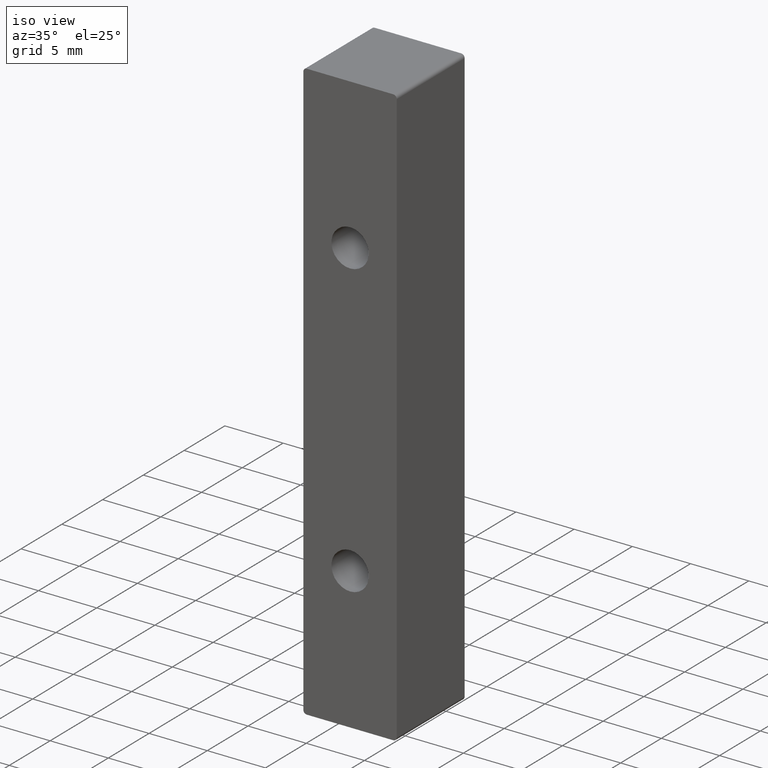
[diagram: clean part render]
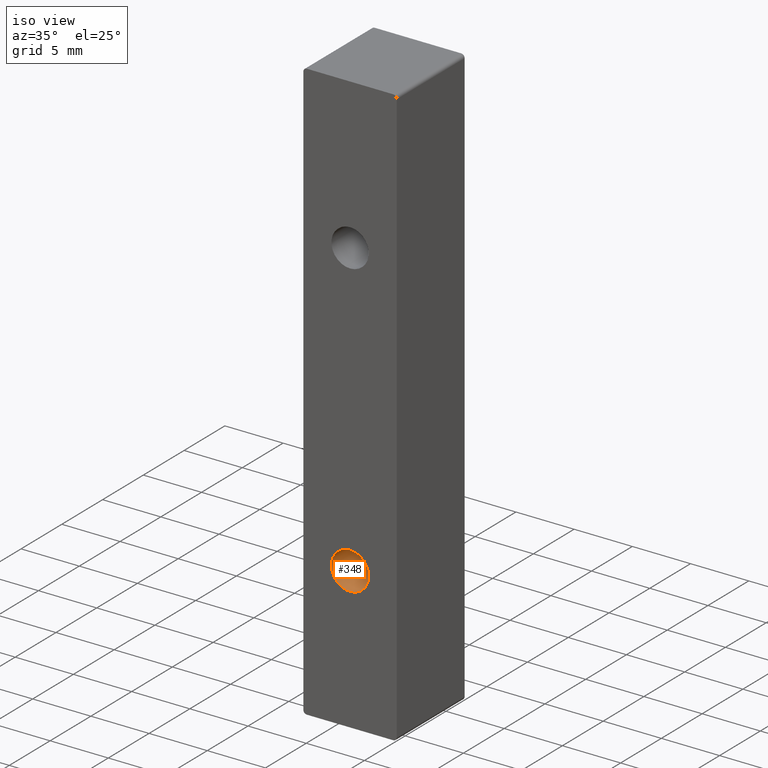
[diagram: same view with one face highlighted and labeled with its STEP entity id]
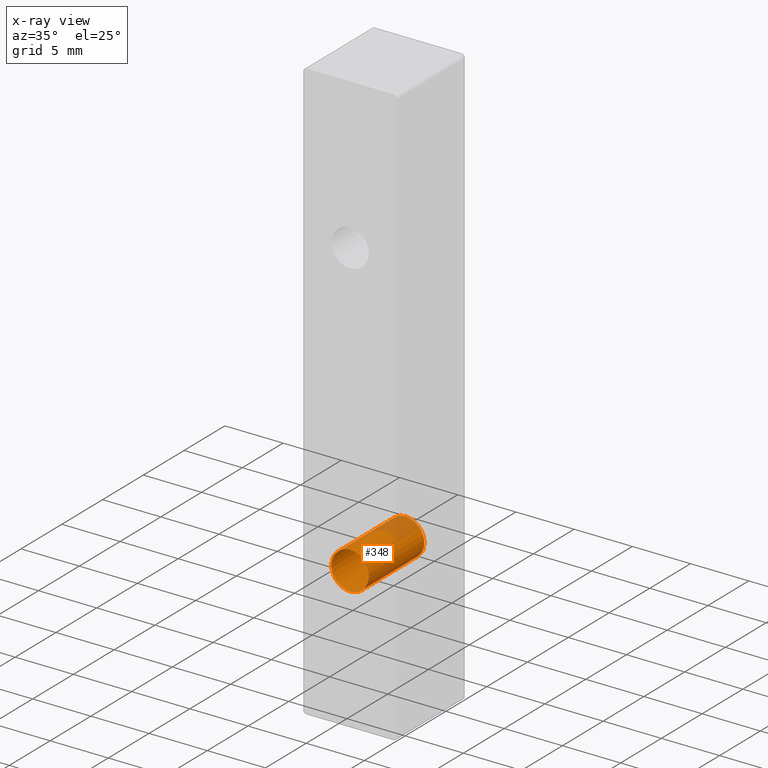
[diagram: x-ray of the same camera — body ghosted, the highlighted face saturated]
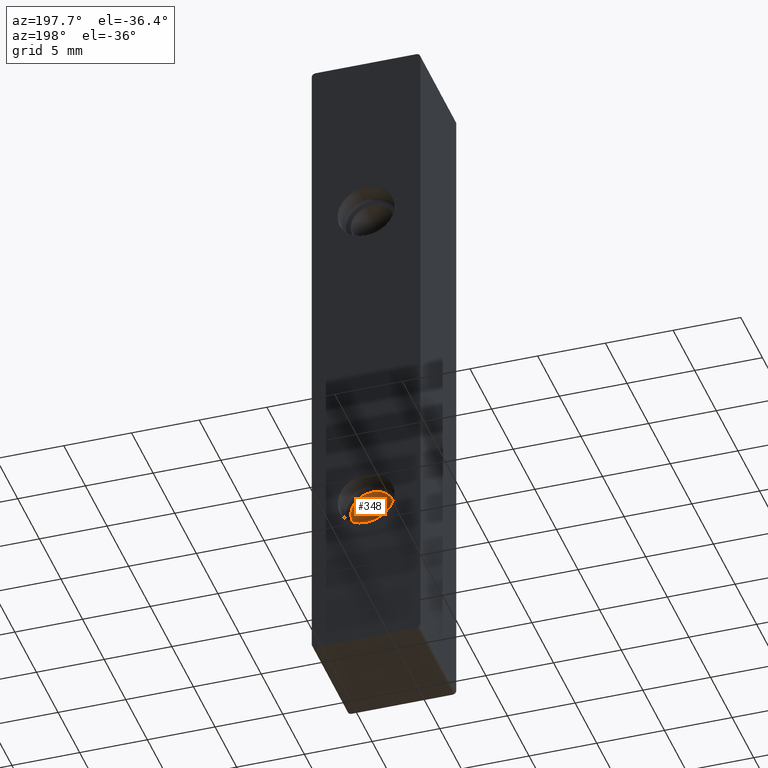
[diagram: same view with one face highlighted and labeled with its STEP entity id]
A machine part, iso view. The second image highlights one B-rep face of the part: STEP entity #348.
The next image is the same camera in x-ray: the body ghosted, the highlighted face saturated — about 15% of this face is hidden behind the body in this view.
A second angle (auxiliary view) of the same face is appended — the face is thin or edge-on in the first view.
In plain terms, the highlighted cylindrical surface (bore or boss wall) has radius 1.6047 mm, axis along (0, -1, 0).
Its self-contained STEP definition (entity closure, byte-faithful):
#21=CYLINDRICAL_SURFACE('',#406,1.60474307896);
#42=FACE_OUTER_BOUND('',#66,.T.);
#66=EDGE_LOOP('',(#276,#277,#278,#279));
#98=LINE('',#601,#123);
#123=VECTOR('',#491,1.60474307896);
#137=CIRCLE('',#388,1.60474307896);
#146=CIRCLE('',#405,1.60474307896);
#165=VERTEX_POINT('',#561);
#176=VERTEX_POINT('',#598);
#197=EDGE_CURVE('',#165,#165,#137,.T.);
#215=EDGE_CURVE('',#176,#176,#146,.T.);
#216=EDGE_CURVE('',#176,#165,#98,.T.);
#276=ORIENTED_EDGE('',*,*,#215,.F.);
#277=ORIENTED_EDGE('',*,*,#216,.T.);
#278=ORIENTED_EDGE('',*,*,#197,.T.);
#279=ORIENTED_EDGE('',*,*,#216,.F.);
#348=ADVANCED_FACE('',(#42),#21,.F.);
#388=AXIS2_PLACEMENT_3D('',#562,#444,#445);
#405=AXIS2_PLACEMENT_3D('',#599,#487,#488);
#406=AXIS2_PLACEMENT_3D('',#600,#489,#490);
#444=DIRECTION('center_axis',(0.,-1.,0.));
#445=DIRECTION('ref_axis',(0.,0.,-1.));
#487=DIRECTION('center_axis',(0.,-1.,0.));
#488=DIRECTION('ref_axis',(1.,0.,0.));
#489=DIRECTION('center_axis',(0.,-1.,0.));
#490=DIRECTION('ref_axis',(0.,0.,-1.));
#491=DIRECTION('',(0.,-1.,0.));
#561=CARTESIAN_POINT('',(-23.028614677314,2.56297272763272,-45.5577056925706));
#562=CARTESIAN_POINT('Origin',(-23.028614677314,2.56297272763272,-47.1624487715306));
#598=CARTESIAN_POINT('',(-23.028614677314,9.38539539508032,-45.5577056925706));
#599=CARTESIAN_POINT('Origin',(-23.028614677314,9.38539539508032,-47.1624487715306));
#600=CARTESIAN_POINT('Origin',(-23.028614677314,5.71076471845917,-47.1624487715306));
#601=CARTESIAN_POINT('',(-23.028614677314,5.71076471845917,-45.5577056925706));